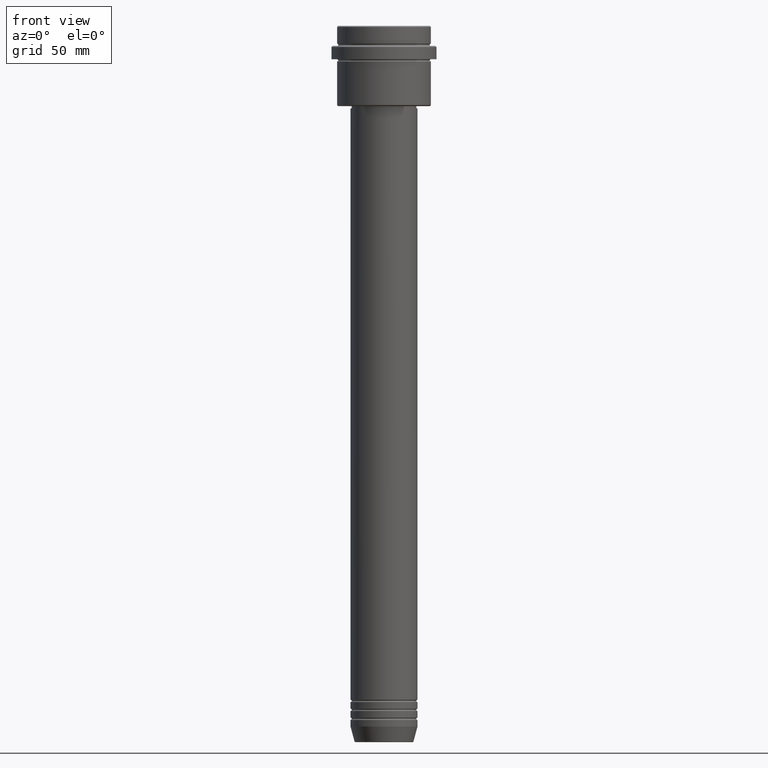
[diagram: clean part render]
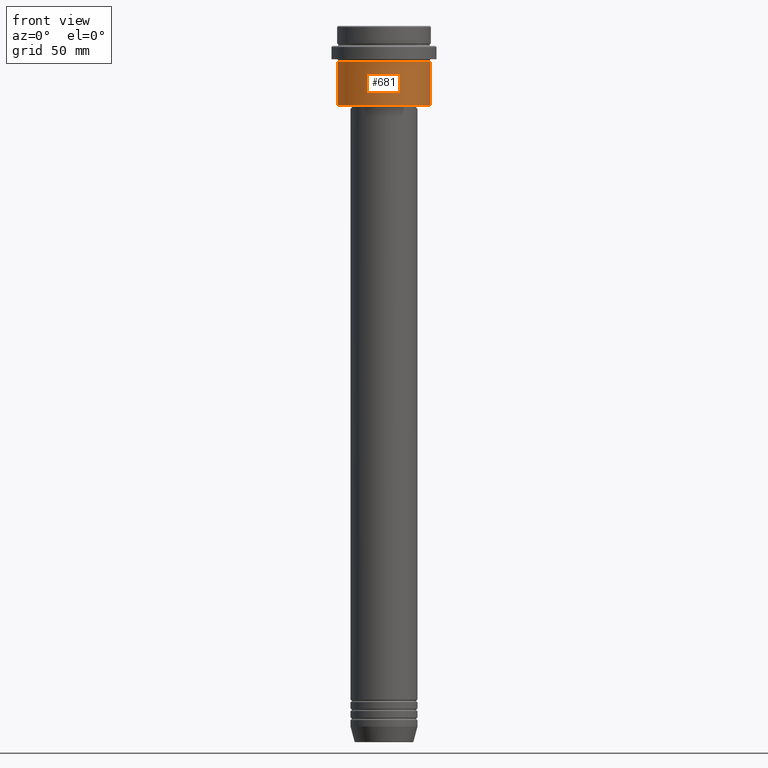
[diagram: same view with one face highlighted and labeled with its STEP entity id]
A machine part, front view. The second image highlights one B-rep face of the part: STEP entity #681.
In plain terms, the highlighted cylindrical surface (partial cylindrical patch) has radius 21 mm, axis along (-0, -0, 1).
Its self-contained STEP definition (entity closure, byte-faithful):
#5 = EDGE_CURVE ( 'NONE', #1116, #969, #415, .T. ) ;
#26 = AXIS2_PLACEMENT_3D ( 'NONE', #270, #1096, #305 ) ;
#31 = CARTESIAN_POINT ( 'NONE',  ( -21.00000000000000000, 2.571758278209441661E-15, -35.49999999999997868 ) ) ;
#118 = EDGE_CURVE ( 'NONE', #1036, #697, #1104, .T. ) ;
#180 = CYLINDRICAL_SURFACE ( 'NONE', #1020, 21.00000000000000000 ) ;
#185 = FACE_OUTER_BOUND ( 'NONE', #1272, .T. ) ;
#270 = CARTESIAN_POINT ( 'NONE',  ( 0.000000000000000000, 0.000000000000000000, -35.49999999999997868 ) ) ;
#283 = CARTESIAN_POINT ( 'NONE',  ( -21.00000000000000000, 2.571758278209441661E-15, -16.00000000000000355 ) ) ;
#294 = DIRECTION ( 'NONE',  ( 1.000000000000000000, 0.000000000000000000, 0.000000000000000000 ) ) ;
#305 = DIRECTION ( 'NONE',  ( -1.000000000000000000, 0.000000000000000000, 0.000000000000000000 ) ) ;
#317 = DIRECTION ( 'NONE',  ( -0.000000000000000000, -0.000000000000000000, 1.000000000000000000 ) ) ;
#345 = CARTESIAN_POINT ( 'NONE',  ( -21.00000000000000000, 2.571758278209441661E-15, 0.000000000000000000 ) ) ;
#354 = AXIS2_PLACEMENT_3D ( 'NONE', #952, #1390, #1379 ) ;
#415 = LINE ( 'NONE', #1292, #1375 ) ;
#493 = ORIENTED_EDGE ( 'NONE', *, *, #1245, .F. ) ;
#663 = CIRCLE ( 'NONE', #354, 21.00000000000000000 ) ;
#671 = DIRECTION ( 'NONE',  ( -0.000000000000000000, -0.000000000000000000, 1.000000000000000000 ) ) ;
#681 = ADVANCED_FACE ( 'NONE', ( #185 ), #180, .T. ) ;
#697 = VERTEX_POINT ( 'NONE', #283 ) ;
#807 = CIRCLE ( 'NONE', #26, 21.00000000000000000 ) ;
#831 = VECTOR ( 'NONE', #671, 1000.000000000000000 ) ;
#915 = CARTESIAN_POINT ( 'NONE',  ( 21.00000000000000000, 0.000000000000000000, -35.49999999999997868 ) ) ;
#944 = ORIENTED_EDGE ( 'NONE', *, *, #118, .F. ) ;
#952 = CARTESIAN_POINT ( 'NONE',  ( 0.000000000000000000, 0.000000000000000000, -16.00000000000000355 ) ) ;
#969 = VERTEX_POINT ( 'NONE', #1398 ) ;
#1020 = AXIS2_PLACEMENT_3D ( 'NONE', #1372, #1254, #294 ) ;
#1036 = VERTEX_POINT ( 'NONE', #31 ) ;
#1069 = ORIENTED_EDGE ( 'NONE', *, *, #5, .T. ) ;
#1076 = ORIENTED_EDGE ( 'NONE', *, *, #1275, .T. ) ;
#1096 = DIRECTION ( 'NONE',  ( -0.000000000000000000, -0.000000000000000000, 1.000000000000000000 ) ) ;
#1104 = LINE ( 'NONE', #345, #831 ) ;
#1116 = VERTEX_POINT ( 'NONE', #915 ) ;
#1245 = EDGE_CURVE ( 'NONE', #697, #969, #663, .T. ) ;
#1254 = DIRECTION ( 'NONE',  ( -0.000000000000000000, -0.000000000000000000, 1.000000000000000000 ) ) ;
#1272 = EDGE_LOOP ( 'NONE', ( #944, #1076, #1069, #493 ) ) ;
#1275 = EDGE_CURVE ( 'NONE', #1036, #1116, #807, .T. ) ;
#1292 = CARTESIAN_POINT ( 'NONE',  ( 21.00000000000000000, 0.000000000000000000, 0.000000000000000000 ) ) ;
#1372 = CARTESIAN_POINT ( 'NONE',  ( 0.000000000000000000, 0.000000000000000000, 0.000000000000000000 ) ) ;
#1375 = VECTOR ( 'NONE', #317, 1000.000000000000000 ) ;
#1379 = DIRECTION ( 'NONE',  ( 1.000000000000000000, 0.000000000000000000, 0.000000000000000000 ) ) ;
#1390 = DIRECTION ( 'NONE',  ( -0.000000000000000000, -0.000000000000000000, 1.000000000000000000 ) ) ;
#1398 = CARTESIAN_POINT ( 'NONE',  ( 21.00000000000000000, 0.000000000000000000, -16.00000000000000355 ) ) ;